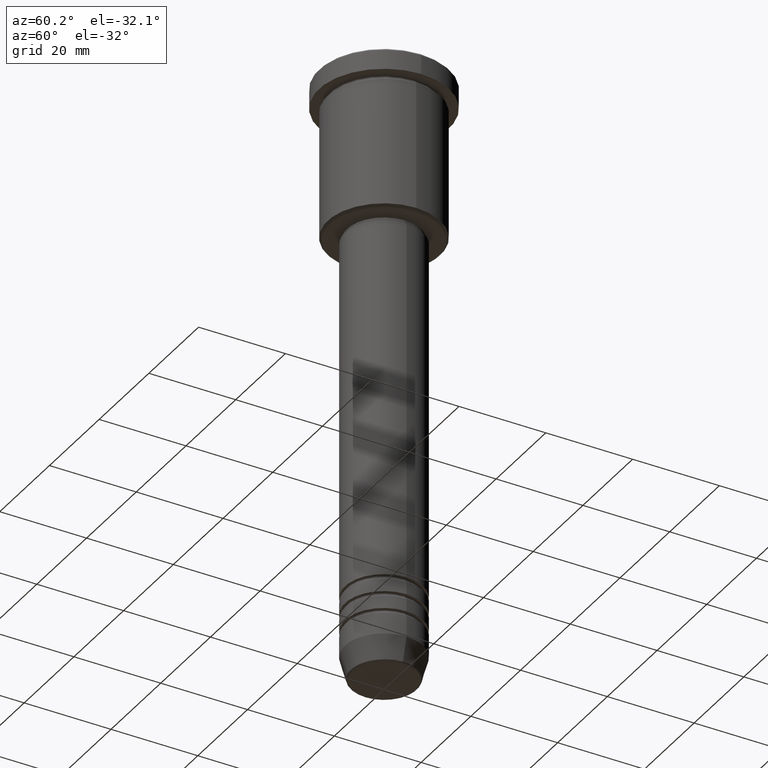
[diagram: clean part render]
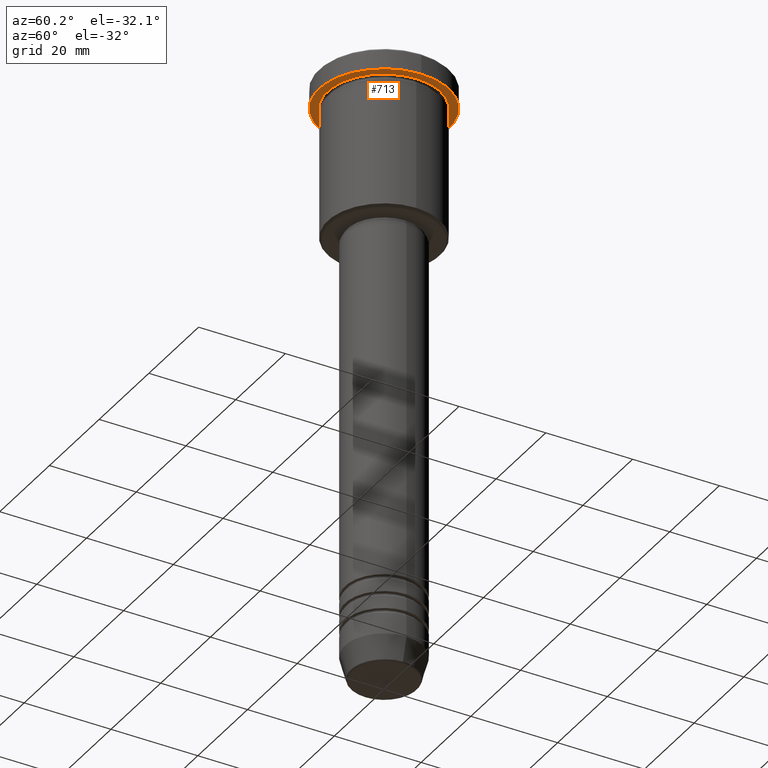
[diagram: same view with one face highlighted and labeled with its STEP entity id]
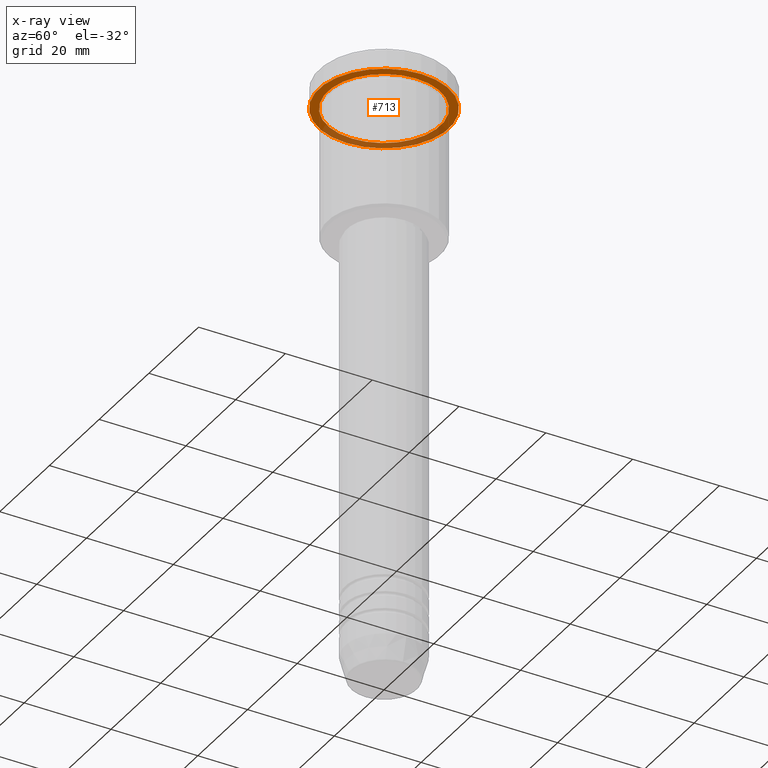
[diagram: x-ray of the same camera — body ghosted, the highlighted face saturated]
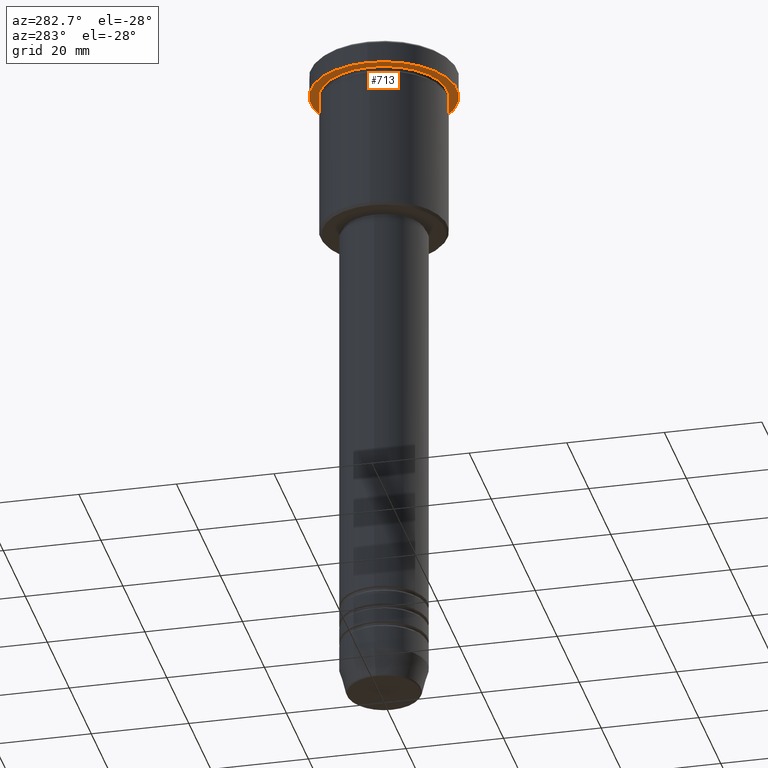
[diagram: same view with one face highlighted and labeled with its STEP entity id]
A machine part, auxiliary view. The second image highlights one B-rep face of the part: STEP entity #713.
The next image is the same camera in x-ray: the body ghosted, the highlighted face saturated — about 33% of this face is hidden behind the body in this view.
A second angle (auxiliary view) of the same face is appended — the face is thin or edge-on in the first view.
In plain terms, the highlighted planar face has unit normal (0, 0, -1).
Its self-contained STEP definition (entity closure, byte-faithful):
#82 = PLANE ( 'NONE',  #100 ) ;
#100 = AXIS2_PLACEMENT_3D ( 'NONE', #529, #345, #814 ) ;
#130 = EDGE_CURVE ( 'NONE', #336, #939, #435, .T. ) ;
#132 = CARTESIAN_POINT ( 'NONE',  ( 13.00000000000000000, 1.592040838891559095E-15, -4.999999999999999112 ) ) ;
#186 = DIRECTION ( 'NONE',  ( 1.000000000000000000, 0.000000000000000000, 0.000000000000000000 ) ) ;
#193 = EDGE_CURVE ( 'NONE', #663, #756, #1096, .T. ) ;
#210 = ORIENTED_EDGE ( 'NONE', *, *, #193, .T. ) ;
#233 = AXIS2_PLACEMENT_3D ( 'NONE', #634, #567, #186 ) ;
#285 = AXIS2_PLACEMENT_3D ( 'NONE', #762, #492, #590 ) ;
#336 = VERTEX_POINT ( 'NONE', #993 ) ;
#337 = CARTESIAN_POINT ( 'NONE',  ( 0.000000000000000000, 0.000000000000000000, -4.999999999999999112 ) ) ;
#345 = DIRECTION ( 'NONE',  ( 0.000000000000000000, 0.000000000000000000, -1.000000000000000000 ) ) ;
#348 = CARTESIAN_POINT ( 'NONE',  ( -13.00000000000000000, 0.000000000000000000, -4.999999999999999112 ) ) ;
#362 = CIRCLE ( 'NONE', #1042, 13.00000000000000000 ) ;
#422 = DIRECTION ( 'NONE',  ( -0.000000000000000000, -0.000000000000000000, 1.000000000000000000 ) ) ;
#435 = CIRCLE ( 'NONE', #233, 15.00000000000000000 ) ;
#478 = ORIENTED_EDGE ( 'NONE', *, *, #784, .F. ) ;
#482 = ORIENTED_EDGE ( 'NONE', *, *, #1171, .T. ) ;
#484 = EDGE_LOOP ( 'NONE', ( #482, #210 ) ) ;
#492 = DIRECTION ( 'NONE',  ( -0.000000000000000000, -0.000000000000000000, 1.000000000000000000 ) ) ;
#510 = CARTESIAN_POINT ( 'NONE',  ( 0.000000000000000000, 0.000000000000000000, -4.999999999999999112 ) ) ;
#521 = FACE_OUTER_BOUND ( 'NONE', #936, .T. ) ;
#524 = DIRECTION ( 'NONE',  ( 1.000000000000000000, 0.000000000000000000, 0.000000000000000000 ) ) ;
#529 = CARTESIAN_POINT ( 'NONE',  ( 0.000000000000000000, 15.00000000000000000, -4.999999999999999112 ) ) ;
#532 = AXIS2_PLACEMENT_3D ( 'NONE', #337, #1074, #524 ) ;
#567 = DIRECTION ( 'NONE',  ( -0.000000000000000000, -0.000000000000000000, 1.000000000000000000 ) ) ;
#590 = DIRECTION ( 'NONE',  ( -1.000000000000000000, 0.000000000000000000, 0.000000000000000000 ) ) ;
#634 = CARTESIAN_POINT ( 'NONE',  ( 0.000000000000000000, 0.000000000000000000, -4.999999999999999112 ) ) ;
#663 = VERTEX_POINT ( 'NONE', #132 ) ;
#698 = FACE_BOUND ( 'NONE', #484, .T. ) ;
#713 = ADVANCED_FACE ( 'NONE', ( #698, #521 ), #82, .T. ) ;
#733 = CARTESIAN_POINT ( 'NONE',  ( 15.00000000000000000, 0.000000000000000000, -4.999999999999999112 ) ) ;
#756 = VERTEX_POINT ( 'NONE', #348 ) ;
#762 = CARTESIAN_POINT ( 'NONE',  ( 0.000000000000000000, 0.000000000000000000, -4.999999999999999112 ) ) ;
#783 = DIRECTION ( 'NONE',  ( -1.000000000000000000, 0.000000000000000000, 0.000000000000000000 ) ) ;
#784 = EDGE_CURVE ( 'NONE', #939, #336, #966, .T. ) ;
#814 = DIRECTION ( 'NONE',  ( -1.000000000000000000, 0.000000000000000000, -0.000000000000000000 ) ) ;
#936 = EDGE_LOOP ( 'NONE', ( #478, #1085 ) ) ;
#939 = VERTEX_POINT ( 'NONE', #733 ) ;
#966 = CIRCLE ( 'NONE', #532, 15.00000000000000000 ) ;
#993 = CARTESIAN_POINT ( 'NONE',  ( -15.00000000000000000, 1.836970198721029589E-15, -4.999999999999999112 ) ) ;
#1042 = AXIS2_PLACEMENT_3D ( 'NONE', #510, #422, #783 ) ;
#1074 = DIRECTION ( 'NONE',  ( -0.000000000000000000, -0.000000000000000000, 1.000000000000000000 ) ) ;
#1085 = ORIENTED_EDGE ( 'NONE', *, *, #130, .F. ) ;
#1096 = CIRCLE ( 'NONE', #285, 13.00000000000000000 ) ;
#1171 = EDGE_CURVE ( 'NONE', #756, #663, #362, .T. ) ;